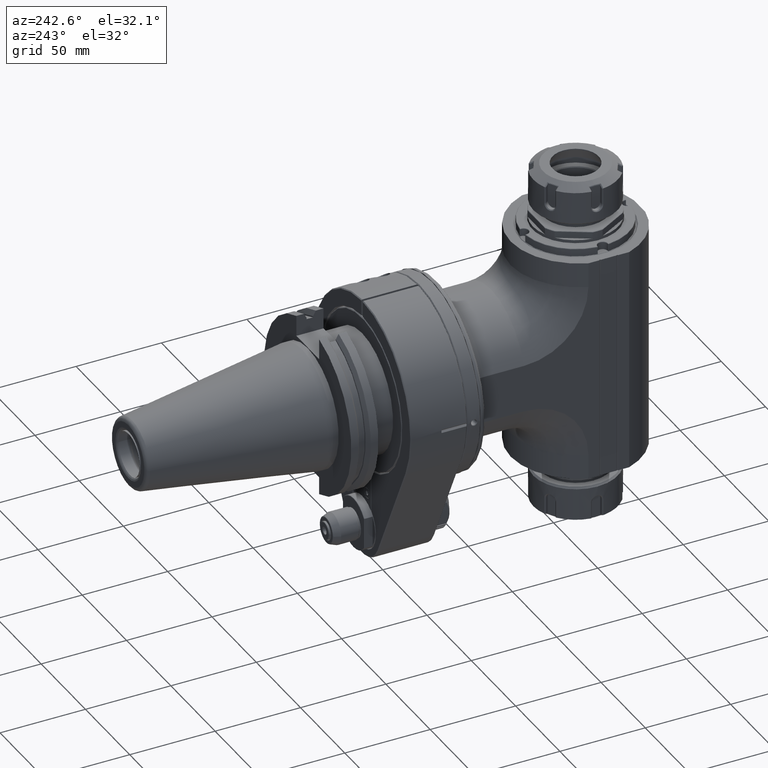
[diagram: clean part render]
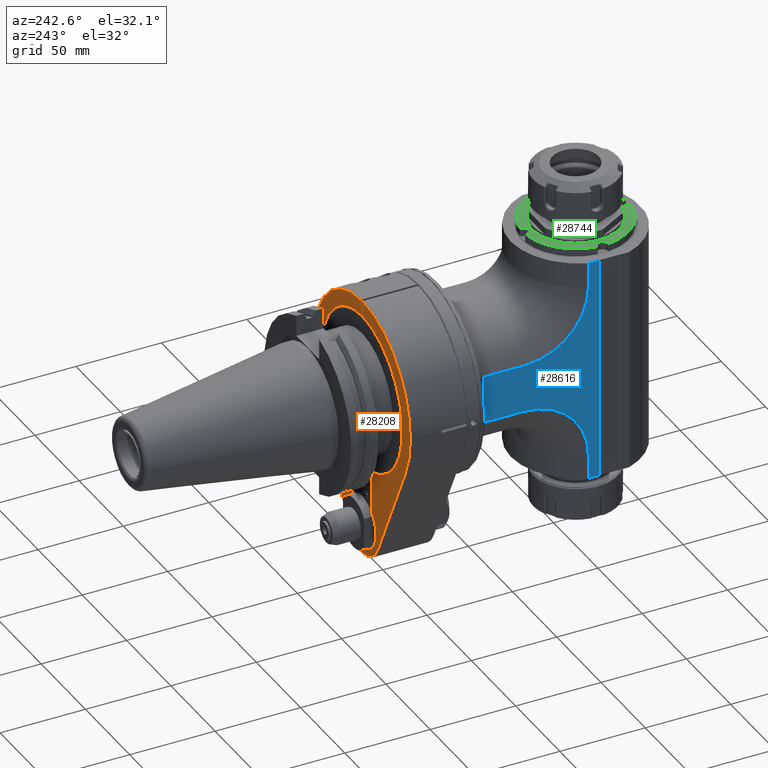
[diagram: same view with three faces highlighted in distinct colors, each labeled with its STEP entity id]
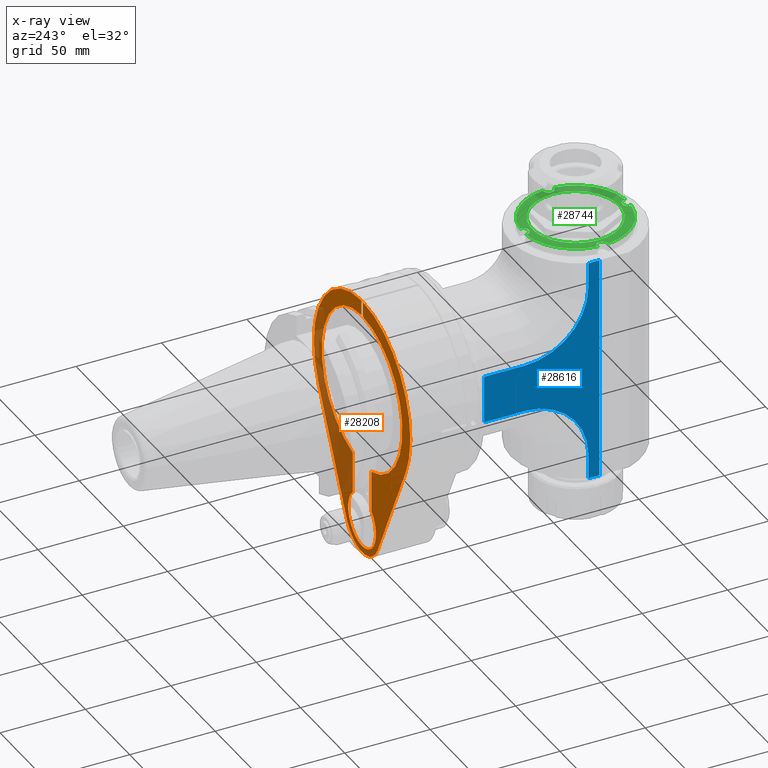
[diagram: x-ray of the same camera — body ghosted, the three highlighted faces saturated]
A machine part, auxiliary view with three faces highlighted in distinct colors.
The next image is the same camera in x-ray (body ghosted, the three faces saturated) — at least one of them is partly hidden behind the body in this view.
Their STEP definitions:

[orange] entity #28208 — the highlighted planar face has unit normal (0, 1, 0).
#2446=CIRCLE('',#30050,45.4999446657);
#2459=CIRCLE('',#30075,54.4997279678);
#2460=CIRCLE('',#30076,19.4996670726964);
#2461=CIRCLE('',#30077,54.49972702429);
#2462=CIRCLE('',#30078,45.49996613716);
#2463=CIRCLE('',#30079,15.64997047922);
#3630=FACE_OUTER_BOUND('',#5197,.T.);
#5197=EDGE_LOOP('',(#19363,#19364,#19365,#19366,#19367,#19368,#19369,#19370,
#19371,#19372,#19373,#19374));
#7036=LINE('',#40903,#9578);
#7045=LINE('',#40958,#9587);
#7050=LINE('',#40985,#9592);
#7053=LINE('',#40992,#9595);
#7054=LINE('',#40998,#9596);
#7055=LINE('',#41001,#9597);
#9578=VECTOR('',#33004,10.);
#9587=VECTOR('',#33051,10.);
#9592=VECTOR('',#33072,10.);
#9595=VECTOR('',#33079,10.);
#9596=VECTOR('',#33086,10.);
#9597=VECTOR('',#33089,10.);
#12263=VERTEX_POINT('',#40882);
#12269=VERTEX_POINT('',#40899);
#12272=VERTEX_POINT('',#40909);
#12286=VERTEX_POINT('',#40953);
#12287=VERTEX_POINT('',#40957);
#12294=VERTEX_POINT('',#40983);
#12295=VERTEX_POINT('',#40984);
#12296=VERTEX_POINT('',#40989);
#12297=VERTEX_POINT('',#40991);
#12298=VERTEX_POINT('',#40995);
#12299=VERTEX_POINT('',#40997);
#12300=VERTEX_POINT('',#40999);
#15040=EDGE_CURVE('',#12263,#12269,#7036,.T.);
#15043=EDGE_CURVE('',#12263,#12272,#2446,.T.);
#15064=EDGE_CURVE('',#12286,#12287,#7045,.T.);
#15075=EDGE_CURVE('',#12294,#12295,#7050,.T.);
#15078=EDGE_CURVE('',#12296,#12269,#2459,.T.);
#15079=EDGE_CURVE('',#12297,#12296,#7053,.T.);
#15080=EDGE_CURVE('',#12295,#12297,#2460,.T.);
#15081=EDGE_CURVE('',#12287,#12294,#2461,.T.);
#15082=EDGE_CURVE('',#12298,#12286,#2462,.T.);
#15083=EDGE_CURVE('',#12299,#12298,#7054,.T.);
#15084=EDGE_CURVE('',#12300,#12299,#2463,.T.);
#15085=EDGE_CURVE('',#12272,#12300,#7055,.T.);
#19363=ORIENTED_EDGE('',*,*,#15043,.F.);
#19364=ORIENTED_EDGE('',*,*,#15040,.T.);
#19365=ORIENTED_EDGE('',*,*,#15078,.F.);
#19366=ORIENTED_EDGE('',*,*,#15079,.F.);
#19367=ORIENTED_EDGE('',*,*,#15080,.F.);
#19368=ORIENTED_EDGE('',*,*,#15075,.F.);
#19369=ORIENTED_EDGE('',*,*,#15081,.F.);
#19370=ORIENTED_EDGE('',*,*,#15064,.F.);
#19371=ORIENTED_EDGE('',*,*,#15082,.F.);
#19372=ORIENTED_EDGE('',*,*,#15083,.F.);
#19373=ORIENTED_EDGE('',*,*,#15084,.F.);
#19374=ORIENTED_EDGE('',*,*,#15085,.F.);
#27278=PLANE('',#30074);
#28208=ADVANCED_FACE('',(#3630),#27278,.T.);
#30050=AXIS2_PLACEMENT_3D('',#40910,#33011,#33012);
#30074=AXIS2_PLACEMENT_3D('',#40988,#33075,#33076);
#30075=AXIS2_PLACEMENT_3D('',#40990,#33077,#33078);
#30076=AXIS2_PLACEMENT_3D('',#40993,#33080,#33081);
#30077=AXIS2_PLACEMENT_3D('',#40994,#33082,#33083);
#30078=AXIS2_PLACEMENT_3D('',#40996,#33084,#33085);
#30079=AXIS2_PLACEMENT_3D('',#41000,#33087,#33088);
#33004=DIRECTION('',(0.,0.,1.));
#33011=DIRECTION('center_axis',(0.,1.,0.));
#33012=DIRECTION('ref_axis',(0.0164835280173405,0.,0.999864137422731));
#33051=DIRECTION('',(0.,0.,1.));
#33072=DIRECTION('',(0.43749999999998,0.,-0.899218410621145));
#33075=DIRECTION('center_axis',(0.,1.,0.));
#33076=DIRECTION('ref_axis',(1.,0.,0.));
#33077=DIRECTION('center_axis',(0.,-1.,0.));
#33078=DIRECTION('ref_axis',(0.899218410123311,0.,-0.437500001023205));
#33079=DIRECTION('',(0.43749999999998,0.,0.899218410621145));
#33080=DIRECTION('center_axis',(0.,-1.,0.));
#33081=DIRECTION('ref_axis',(0.,0.,1.));
#33082=DIRECTION('center_axis',(0.,-1.,0.));
#33083=DIRECTION('ref_axis',(-0.0137615308378099,0.,0.99990530565099));
#33084=DIRECTION('center_axis',(0.,1.,0.));
#33085=DIRECTION('ref_axis',(-0.230769352444596,0.,-0.973008481963185));
#33086=DIRECTION('',(0.,0.,1.));
#33087=DIRECTION('center_axis',(0.,1.,0.));
#33088=DIRECTION('ref_axis',(-0.670930538431927,0.,-0.74152020377023));
#33089=DIRECTION('',(0.,0.,-1.));
#40882=CARTESIAN_POINT('',(0.750000000027361,32.999999999515,45.4937629183949));
#40899=CARTESIAN_POINT('',(0.749999999976473,32.9999999994991,54.4945671484432));
#40903=CARTESIAN_POINT('',(0.75,33.,20.));
#40909=CARTESIAN_POINT('',(10.4999999995187,32.9999999998289,-44.2718303729929));
#40910=CARTESIAN_POINT('Origin',(5.764278043854E-13,33.,2.380318264796E-13));
#40953=CARTESIAN_POINT('',(-0.750000000018149,32.9999999996772,45.4937843931664));
#40957=CARTESIAN_POINT('',(-0.749999999976411,32.9999999994983,54.4945662048469));
#40958=CARTESIAN_POINT('',(-0.75,33.,31.847));
#40983=CARTESIAN_POINT('',(-49.0072803052741,33.0000002228673,-23.8436901632973));
#40984=CARTESIAN_POINT('',(-17.5349551279189,32.999998705085,-88.530471183187));
#40985=CARTESIAN_POINT('',(-41.1392422859193,33.,-40.0156249999998));
#40988=CARTESIAN_POINT('Origin',(0.,33.,0.));
#40989=CARTESIAN_POINT('',(49.007280721413,33.0000002220992,-23.8436903891079));
#40990=CARTESIAN_POINT('Origin',(3.099742784753E-13,33.,8.109069071862E-13));
#40991=CARTESIAN_POINT('',(17.5349710274581,33.0000132101883,-88.5304337147269));
#40992=CARTESIAN_POINT('',(41.1392422859193,33.,-40.0156249999998));
#40993=CARTESIAN_POINT('Origin',(-4.174437572591E-14,33.,-80.));
#40994=CARTESIAN_POINT('Origin',(-8.206768498029E-13,33.,2.84217194304E-14));
#40995=CARTESIAN_POINT('',(-10.500000000249,33.0000000002012,-44.2718524406441));
#40996=CARTESIAN_POINT('Origin',(-3.232969347708E-13,33.,-6.461497003318E-14));
#40997=CARTESIAN_POINT('',(-10.4999999995588,32.9999999999982,-68.3951916851949));
#40998=CARTESIAN_POINT('',(-10.5,33.,-28.12350667748));
#40999=CARTESIAN_POINT('',(10.5000000040409,33.0000000027957,-68.395191686819));
#41000=CARTESIAN_POINT('Origin',(-2.124966769133E-13,33.,-80.));
#41001=CARTESIAN_POINT('',(10.5,33.,-28.12350667748));

[blue] entity #28616 — the highlighted planar face has unit normal (1, 0, -0).
#2677=CIRCLE('',#30696,37.58058909292);
#2684=CIRCLE('',#30709,37.58058909292);
#4038=FACE_OUTER_BOUND('',#5650,.T.);
#5650=EDGE_LOOP('',(#21549,#21550,#21551,#21552,#21553,#21554,#21555,#21556,
#21557,#21558));
#7771=LINE('',#44151,#10313);
#7772=LINE('',#44159,#10314);
#7774=LINE('',#44231,#10316);
#7775=LINE('',#44239,#10317);
#7777=LINE('',#44245,#10319);
#7805=LINE('',#44310,#10347);
#7806=LINE('',#44314,#10348);
#7807=LINE('',#44315,#10349);
#10313=VECTOR('',#35033,14.5);
#10314=VECTOR('',#35044,23.5);
#10316=VECTOR('',#35062,23.5);
#10317=VECTOR('',#35073,14.5);
#10319=VECTOR('',#35079,6.419410907075);
#10347=VECTOR('',#35123,6.419410907075);
#10348=VECTOR('',#35128,132.);
#10349=VECTOR('',#35129,27.83882181415);
#12941=VERTEX_POINT('',#44148);
#12942=VERTEX_POINT('',#44150);
#12943=VERTEX_POINT('',#44154);
#12944=VERTEX_POINT('',#44158);
#12949=VERTEX_POINT('',#44213);
#12950=VERTEX_POINT('',#44230);
#12951=VERTEX_POINT('',#44234);
#12952=VERTEX_POINT('',#44238);
#12954=VERTEX_POINT('',#44244);
#12983=VERTEX_POINT('',#44308);
#16093=EDGE_CURVE('',#12941,#12942,#7771,.T.);
#16095=EDGE_CURVE('',#12943,#12942,#2677,.T.);
#16097=EDGE_CURVE('',#12944,#12943,#7772,.T.);
#16107=EDGE_CURVE('',#12949,#12950,#7774,.T.);
#16109=EDGE_CURVE('',#12950,#12951,#2684,.T.);
#16111=EDGE_CURVE('',#12951,#12952,#7775,.T.);
#16114=EDGE_CURVE('',#12952,#12954,#7777,.T.);
#16147=EDGE_CURVE('',#12941,#12983,#7805,.T.);
#16149=EDGE_CURVE('',#12983,#12954,#7806,.T.);
#16150=EDGE_CURVE('',#12944,#12949,#7807,.T.);
#21549=ORIENTED_EDGE('',*,*,#16093,.F.);
#21550=ORIENTED_EDGE('',*,*,#16147,.T.);
#21551=ORIENTED_EDGE('',*,*,#16149,.T.);
#21552=ORIENTED_EDGE('',*,*,#16114,.F.);
#21553=ORIENTED_EDGE('',*,*,#16111,.F.);
#21554=ORIENTED_EDGE('',*,*,#16109,.F.);
#21555=ORIENTED_EDGE('',*,*,#16107,.F.);
#21556=ORIENTED_EDGE('',*,*,#16150,.F.);
#21557=ORIENTED_EDGE('',*,*,#16097,.T.);
#21558=ORIENTED_EDGE('',*,*,#16095,.T.);
#27516=PLANE('',#30723);
#28616=ADVANCED_FACE('',(#4038),#27516,.F.);
#30696=AXIS2_PLACEMENT_3D('',#44155,#35038,#35039);
#30709=AXIS2_PLACEMENT_3D('',#44235,#35067,#35068);
#30723=AXIS2_PLACEMENT_3D('',#44313,#35126,#35127);
#35033=DIRECTION('',(0.,0.,1.));
#35038=DIRECTION('center_axis',(1.,0.,0.));
#35039=DIRECTION('ref_axis',(0.,0.,1.));
#35044=DIRECTION('',(0.,-1.,0.));
#35062=DIRECTION('',(0.,-1.,0.));
#35067=DIRECTION('center_axis',(-1.,0.,0.));
#35068=DIRECTION('ref_axis',(0.,0.,-1.));
#35073=DIRECTION('',(0.,0.,1.));
#35079=DIRECTION('',(0.,-1.,0.));
#35123=DIRECTION('',(0.,-1.,0.));
#35126=DIRECTION('center_axis',(1.,0.,0.));
#35127=DIRECTION('ref_axis',(0.,1.,0.));
#35128=DIRECTION('',(0.,0.,1.));
#35129=DIRECTION('',(0.,0.,1.));
#44148=CARTESIAN_POINT('',(-37.5,11.91941090708,-66.));
#44150=CARTESIAN_POINT('',(-37.5,11.91941090708,-51.5));
#44151=CARTESIAN_POINT('',(-37.5,11.91941090708,-66.));
#44154=CARTESIAN_POINT('',(-37.5,49.5,-13.91941090708));
#44155=CARTESIAN_POINT('Origin',(-37.5,49.5,-51.5));
#44158=CARTESIAN_POINT('',(-37.5,73.,-13.91941090708));
#44159=CARTESIAN_POINT('',(-37.5,73.,-13.91941090708));
#44213=CARTESIAN_POINT('',(-37.5,73.,13.91941090708));
#44230=CARTESIAN_POINT('',(-37.5,49.5,13.91941090708));
#44231=CARTESIAN_POINT('',(-37.5,73.,13.91941090708));
#44234=CARTESIAN_POINT('',(-37.5,11.91941090708,51.5));
#44235=CARTESIAN_POINT('Origin',(-37.5,49.5,51.5));
#44238=CARTESIAN_POINT('',(-37.5,11.91941090708,66.));
#44239=CARTESIAN_POINT('',(-37.5,11.91941090708,51.5));
#44244=CARTESIAN_POINT('',(-37.5,5.5,66.));
#44245=CARTESIAN_POINT('',(-37.5,11.91941090708,66.));
#44308=CARTESIAN_POINT('',(-37.5,5.5,-66.));
#44310=CARTESIAN_POINT('',(-37.5,11.91941090708,-66.));
#44313=CARTESIAN_POINT('Origin',(-37.5,-18.01312866034,-79.2));
#44314=CARTESIAN_POINT('',(-37.5,5.5,-66.));
#44315=CARTESIAN_POINT('',(-37.5,73.,-13.91941090708));

[green] entity #28744 — the highlighted planar face has unit normal (0, -0, 1).
#1373=FACE_BOUND('',#5799,.T.);
#2844=CIRCLE('',#31004,25.45);
#2845=CIRCLE('',#31006,3.199977448179);
#2846=CIRCLE('',#31007,31.04996948053);
#2847=CIRCLE('',#31008,3.199977448179);
#2848=CIRCLE('',#31009,31.04999980057);
#2849=CIRCLE('',#31010,3.199978020371);
#2850=CIRCLE('',#31011,31.04997346802);
#2851=CIRCLE('',#31012,3.199978455971);
#2852=CIRCLE('',#31013,31.04994608036);
#4166=FACE_OUTER_BOUND('',#5798,.T.);
#5798=EDGE_LOOP('',(#22159,#22160,#22161,#22162,#22163,#22164,#22165,#22166));
#5799=EDGE_LOOP('',(#22167));
#13162=VERTEX_POINT('',#45214);
#13163=VERTEX_POINT('',#45218);
#13164=VERTEX_POINT('',#45219);
#13165=VERTEX_POINT('',#45221);
#13166=VERTEX_POINT('',#45223);
#13167=VERTEX_POINT('',#45225);
#13168=VERTEX_POINT('',#45227);
#13169=VERTEX_POINT('',#45229);
#13170=VERTEX_POINT('',#45231);
#16433=EDGE_CURVE('',#13162,#13162,#2844,.T.);
#16434=EDGE_CURVE('',#13163,#13164,#2845,.T.);
#16435=EDGE_CURVE('',#13164,#13165,#2846,.T.);
#16436=EDGE_CURVE('',#13165,#13166,#2847,.T.);
#16437=EDGE_CURVE('',#13166,#13167,#2848,.T.);
#16438=EDGE_CURVE('',#13167,#13168,#2849,.T.);
#16439=EDGE_CURVE('',#13168,#13169,#2850,.T.);
#16440=EDGE_CURVE('',#13169,#13170,#2851,.T.);
#16441=EDGE_CURVE('',#13170,#13163,#2852,.T.);
#22159=ORIENTED_EDGE('',*,*,#16434,.T.);
#22160=ORIENTED_EDGE('',*,*,#16435,.T.);
#22161=ORIENTED_EDGE('',*,*,#16436,.T.);
#22162=ORIENTED_EDGE('',*,*,#16437,.T.);
#22163=ORIENTED_EDGE('',*,*,#16438,.T.);
#22164=ORIENTED_EDGE('',*,*,#16439,.T.);
#22165=ORIENTED_EDGE('',*,*,#16440,.T.);
#22166=ORIENTED_EDGE('',*,*,#16441,.T.);
#22167=ORIENTED_EDGE('',*,*,#16433,.F.);
#27555=PLANE('',#31005);
#28744=ADVANCED_FACE('',(#4166,#1373),#27555,.T.);
#31004=AXIS2_PLACEMENT_3D('',#45216,#35786,#35787);
#31005=AXIS2_PLACEMENT_3D('',#45217,#35788,#35789);
#31006=AXIS2_PLACEMENT_3D('',#45220,#35790,#35791);
#31007=AXIS2_PLACEMENT_3D('',#45222,#35792,#35793);
#31008=AXIS2_PLACEMENT_3D('',#45224,#35794,#35795);
#31009=AXIS2_PLACEMENT_3D('',#45226,#35796,#35797);
#31010=AXIS2_PLACEMENT_3D('',#45228,#35798,#35799);
#31011=AXIS2_PLACEMENT_3D('',#45230,#35800,#35801);
#31012=AXIS2_PLACEMENT_3D('',#45232,#35802,#35803);
#31013=AXIS2_PLACEMENT_3D('',#45233,#35804,#35805);
#35786=DIRECTION('center_axis',(0.,0.,1.));
#35787=DIRECTION('ref_axis',(1.,0.,0.));
#35788=DIRECTION('center_axis',(0.,0.,1.));
#35789=DIRECTION('ref_axis',(-1.,0.,0.));
#35790=DIRECTION('center_axis',(0.,0.,-1.));
#35791=DIRECTION('ref_axis',(-0.120958298414199,0.992657589526591,0.));
#35792=DIRECTION('center_axis',(0.,0.,1.));
#35793=DIRECTION('ref_axis',(-0.994753334467709,-0.102302510063901,0.));
#35794=DIRECTION('center_axis',(0.,0.,-1.));
#35795=DIRECTION('ref_axis',(-0.992657145006175,-0.120961946364097,0.));
#35796=DIRECTION('center_axis',(0.,0.,1.));
#35797=DIRECTION('ref_axis',(0.102302463884499,-0.994753339216894,0.));
#35798=DIRECTION('center_axis',(0.,0.,-1.));
#35799=DIRECTION('ref_axis',(0.120966634667999,-0.992656573693591,0.));
#35800=DIRECTION('center_axis',(0.,0.,1.));
#35801=DIRECTION('ref_axis',(0.99475334275903,0.102302429442003,0.));
#35802=DIRECTION('center_axis',(0.,0.,-1.));
#35803=DIRECTION('ref_axis',(0.992657076302107,0.120962510173001,0.));
#35804=DIRECTION('center_axis',(0.,0.,1.));
#35805=DIRECTION('ref_axis',(-0.102302487007003,0.994753336838928,0.));
#45214=CARTESIAN_POINT('',(-25.4495709232204,0.147783030064916,70.));
#45216=CARTESIAN_POINT('Origin',(0.,0.,70.));
#45217=CARTESIAN_POINT('Origin',(0.,0.,70.));
#45218=CARTESIAN_POINT('',(-30.8870376401334,3.17648508927904,69.9999999992685));
#45219=CARTESIAN_POINT('',(-30.8870614622279,-3.17648218660254,69.9999999992715));
#45220=CARTESIAN_POINT('Origin',(-30.5,-1.548761119352E-14,70.));
#45221=CARTESIAN_POINT('',(-3.17648218692287,-30.8870614619121,69.9999999993849));
#45222=CARTESIAN_POINT('Origin',(6.061074956254E-13,2.318145675417E-12,
70.));
#45223=CARTESIAN_POINT('',(3.17647842919125,-30.8870923251568,70.0000000006637));
#45224=CARTESIAN_POINT('Origin',(0.,-30.5,70.));
#45225=CARTESIAN_POINT('',(30.8870922650126,-3.17647901304671,70.0000000007036));
#45226=CARTESIAN_POINT('Origin',(-9.910616961649E-14,-1.287858708565E-13,
70.));
#45227=CARTESIAN_POINT('',(30.887065461697,3.17648227558615,69.9999999992331));
#45228=CARTESIAN_POINT('Origin',(30.5,2.342570581959E-14,70.));
#45229=CARTESIAN_POINT('',(3.17648272048552,30.8870654154956,69.9999999994138));
#45230=CARTESIAN_POINT('Origin',(3.818424446511E-13,9.308109838457E-13,
70.));
#45231=CARTESIAN_POINT('',(-3.17648611744521,30.8870375343624,69.9999999992815));
#45232=CARTESIAN_POINT('Origin',(4.125045290262E-14,30.5,70.));
#45233=CARTESIAN_POINT('Origin',(-2.252275052139E-13,5.6266102888E-13,70.));